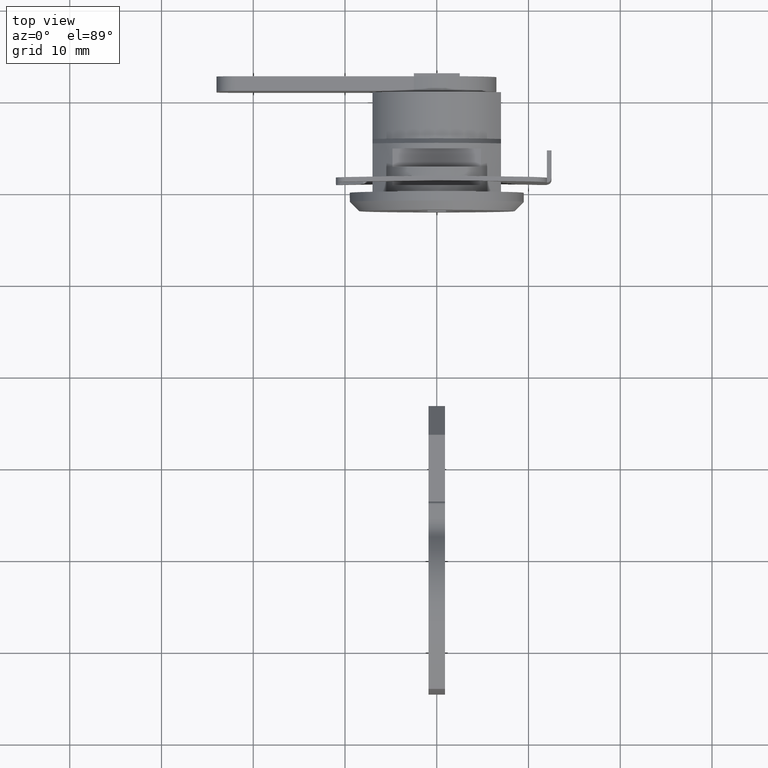
[diagram: clean part render]
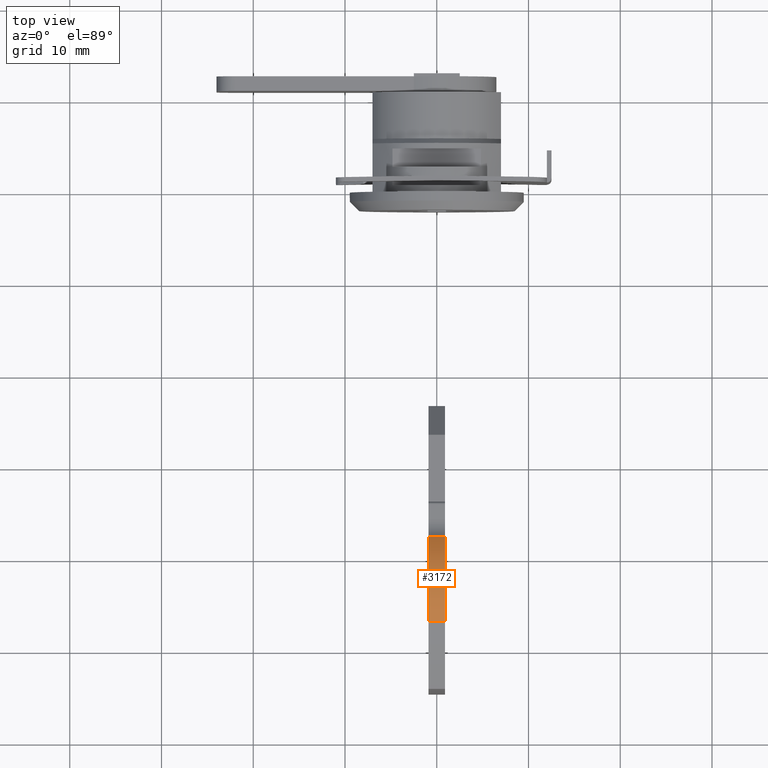
[diagram: same view with one face highlighted and labeled with its STEP entity id]
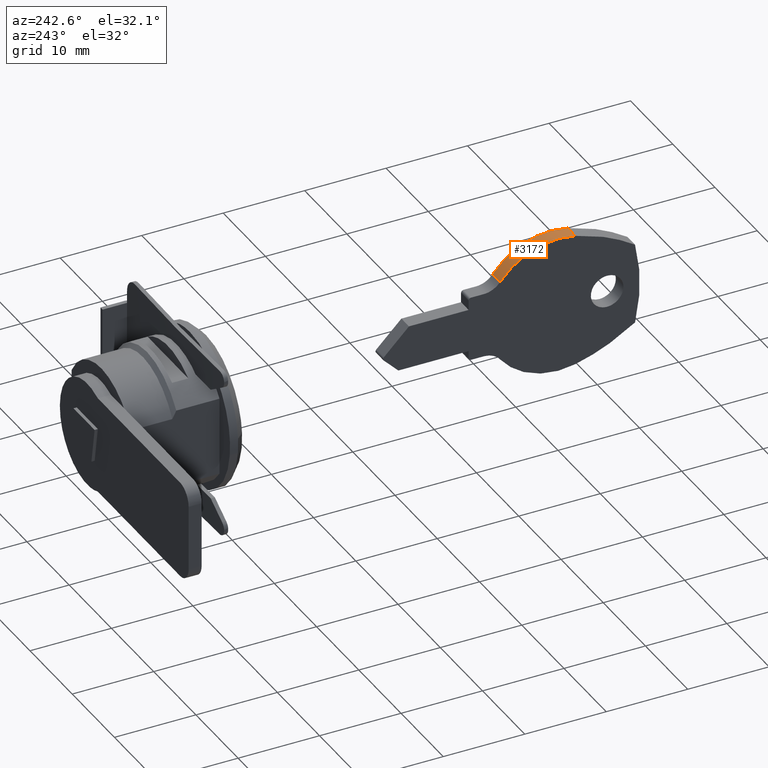
[diagram: same view with one face highlighted and labeled with its STEP entity id]
A machine part, top view. The second image highlights one B-rep face of the part: STEP entity #3172.
A second angle (auxiliary view) of the same face is appended — the face is thin or edge-on in the first view.
In plain terms, the highlighted face is a freeform B-spline surface patch.
Its self-contained STEP definition (entity closure, byte-faithful):
#2360=CARTESIAN_POINT('',(-37.606625119658702,0.900000000000012,5.578260861414620));
#2361=VERTEX_POINT('',#2360);
#2362=CARTESIAN_POINT('',(-46.834713811401492,0.900000000000012,8.854572602540600));
#2363=VERTEX_POINT('',#2362);
#2364=CARTESIAN_POINT('',(-37.606625119658702,0.900000000000012,5.578260861414620));
#2365=CARTESIAN_POINT('',(-41.158544601538956,0.900000000000012,10.208007038718991));
#2366=CARTESIAN_POINT('',(-46.834713811401492,0.900000000000012,8.854572602540600));
#2374=(BOUNDED_CURVE()B_SPLINE_CURVE(2,(#2364,#2365,#2366),.UNSPECIFIED.,.F.,.U.)CURVE()GEOMETRIC_REPRESENTATION_ITEM()QUASI_UNIFORM_CURVE()RATIONAL_B_SPLINE_CURVE((1.0,0.839069454552870,1.0))REPRESENTATION_ITEM(''));
#2375=EDGE_CURVE('',#2361,#2363,#2374,.T.);
#2580=CARTESIAN_POINT('',(-37.606625119658702,-0.900000000000012,5.578260861414620));
#2581=VERTEX_POINT('',#2580);
#2582=CARTESIAN_POINT('',(-46.834713811401492,-0.900000000000012,8.854572602540600));
#2583=VERTEX_POINT('',#2582);
#2584=CARTESIAN_POINT('',(-37.606625119658702,-0.900000000000012,5.578260861414620));
#2585=CARTESIAN_POINT('',(-41.158544601538956,-0.900000000000012,10.208007038718991));
#2586=CARTESIAN_POINT('',(-46.834713811401492,-0.900000000000012,8.854572602540600));
#2594=(BOUNDED_CURVE()B_SPLINE_CURVE(2,(#2584,#2585,#2586),.UNSPECIFIED.,.F.,.U.)CURVE()GEOMETRIC_REPRESENTATION_ITEM()QUASI_UNIFORM_CURVE()RATIONAL_B_SPLINE_CURVE((1.0,0.839069454552870,1.0))REPRESENTATION_ITEM(''));
#2595=EDGE_CURVE('',#2581,#2583,#2594,.T.);
#2810=CARTESIAN_POINT('',(-37.606625119658702,-0.900000000000012,5.578260861414620));
#2811=CARTESIAN_POINT('',(-37.606625119658702,0.900000000000012,5.578260861414620));
#2812=QUASI_UNIFORM_CURVE('',1,(#2810,#2811),.UNSPECIFIED.,.F.,.U.);
#2813=EDGE_CURVE('',#2581,#2361,#2812,.T.);
#3144=CARTESIAN_POINT('',(-46.834713811401492,-0.900000000000012,8.854572602540600));
#3145=CARTESIAN_POINT('',(-46.834713811401492,0.900000000000012,8.854572602540600));
#3146=QUASI_UNIFORM_CURVE('',1,(#3144,#3145),.UNSPECIFIED.,.F.,.U.);
#3147=EDGE_CURVE('',#2583,#2363,#3146,.T.);
#3152=CARTESIAN_POINT('',(-37.465668016674897,-0.945000000000013,5.389463483045072));
#3153=CARTESIAN_POINT('',(-37.465668016674897,0.946125000000013,5.389463483045072));
#3154=CARTESIAN_POINT('',(-41.169390220588028,-0.945000000000013,10.488088803468472));
#3155=CARTESIAN_POINT('',(-41.169390220588028,0.946125000000013,10.488088803468472));
#3156=CARTESIAN_POINT('',(-47.227278409362931,-0.945000000000013,8.751560941865463));
#3157=CARTESIAN_POINT('',(-47.227278409362931,0.946125000000013,8.751560941865463));
#3165=(BOUNDED_SURFACE()B_SPLINE_SURFACE(1,2,((#3152,#3154,#3156),(#3153,#3155,#3157)),.UNSPECIFIED.,.F.,.F.,.U.)B_SPLINE_SURFACE_WITH_KNOTS((2,2),(3,3),(0.0,1.0),(0.0,11.350756399643410),.UNSPECIFIED.)GEOMETRIC_REPRESENTATION_ITEM()RATIONAL_B_SPLINE_SURFACE(((1.0,0.819152044288992,1.0),(1.0,0.819152044288992,1.0)))REPRESENTATION_ITEM('')SURFACE());
#3166=ORIENTED_EDGE('',*,*,#2375,.T.);
#3167=ORIENTED_EDGE('',*,*,#3147,.F.);
#3168=ORIENTED_EDGE('',*,*,#2595,.F.);
#3169=ORIENTED_EDGE('',*,*,#2813,.T.);
#3170=EDGE_LOOP('',(#3166,#3167,#3168,#3169));
#3171=FACE_OUTER_BOUND('',#3170,.T.);
#3172=ADVANCED_FACE('',(#3171),#3165,.T.);